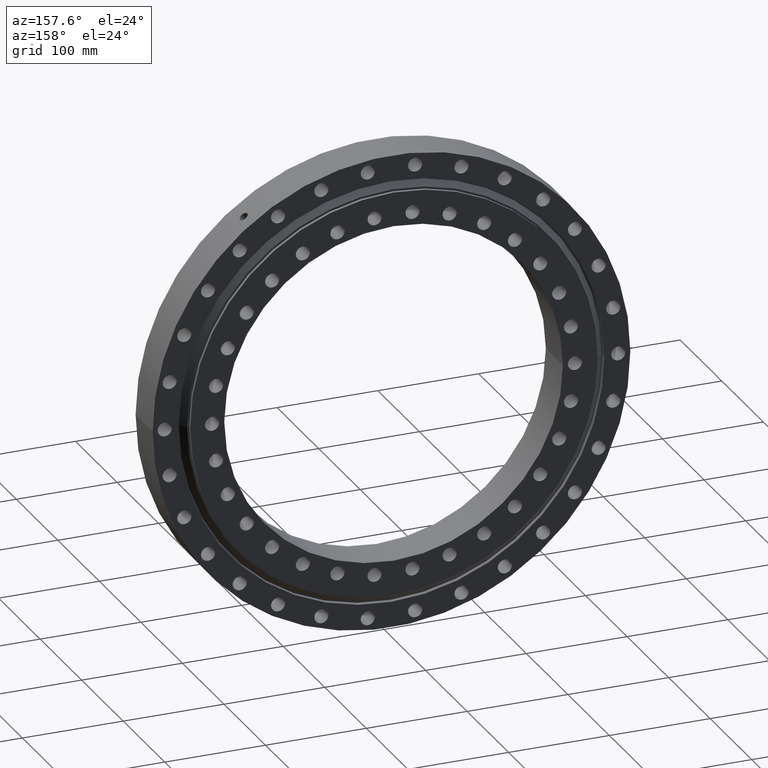
[diagram: clean part render]
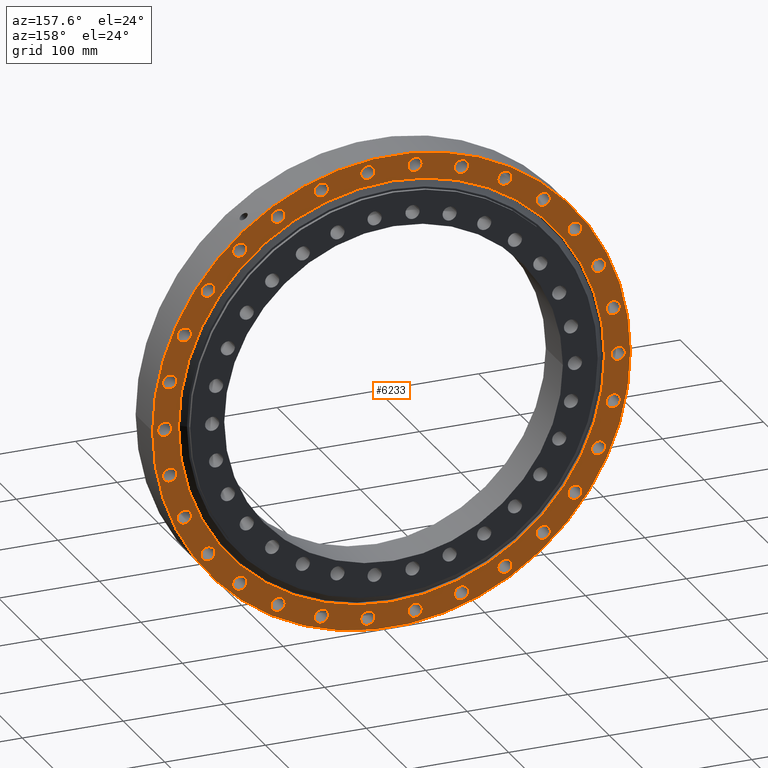
[diagram: same view with one face highlighted and labeled with its STEP entity id]
A machine part, auxiliary view. The second image highlights one B-rep face of the part: STEP entity #6233.
In plain terms, the highlighted planar face has unit normal (0, -1, 0).
Its self-contained STEP definition (entity closure, byte-faithful):
#9 = DIRECTION ( 'NONE',  ( 0.0000000000000000000, 1.000000000000000000, 0.0000000000000000000 ) ) ;
#11 = EDGE_CURVE ( 'NONE', #3335, #3325, #948, .T. ) ;
#34 = AXIS2_PLACEMENT_3D ( 'NONE', #3413, #1153, #1152 ) ;
#41 = ORIENTED_EDGE ( 'NONE', *, *, #6557, .F. ) ;
#51 = ORIENTED_EDGE ( 'NONE', *, *, #2247, .F. ) ;
#63 = AXIS2_PLACEMENT_3D ( 'NONE', #1870, #5289, #5298 ) ;
#64 = ORIENTED_EDGE ( 'NONE', *, *, #4627, .F. ) ;
#100 = CARTESIAN_POINT ( 'NONE',  ( -143.5543864307427100, 18.00000000000000400, 167.2075857324140900 ) ) ;
#106 = EDGE_CURVE ( 'NONE', #5952, #6177, #191, .T. ) ;
#114 = AXIS2_PLACEMENT_3D ( 'NONE', #2688, #2670, #2569 ) ;
#121 = AXIS2_PLACEMENT_3D ( 'NONE', #3672, #3800, #3658 ) ;
#131 = VERTEX_POINT ( 'NONE', #4170 ) ;
#140 = ORIENTED_EDGE ( 'NONE', *, *, #6783, .T. ) ;
#164 = AXIS2_PLACEMENT_3D ( 'NONE', #3949, #3893, #3888 ) ;
#166 = CARTESIAN_POINT ( 'NONE',  ( -212.5477279695850800, 18.00000000000000400, 91.51574469205549200 ) ) ;
#172 = CARTESIAN_POINT ( 'NONE',  ( -69.52882373436573000, 18.00000000000000400, -213.9877161664087500 ) ) ;
#177 = DIRECTION ( 'NONE',  ( 0.0000000000000000000, 1.000000000000000000, 0.0000000000000000000 ) ) ;
#191 = CIRCLE ( 'NONE', #4261, 6.999999999999992900 ) ;
#202 = DIRECTION ( 'NONE',  ( 0.0000000000000000000, 1.000000000000000000, 0.0000000000000000000 ) ) ;
#204 = DIRECTION ( 'NONE',  ( -0.3090169943749445100, 0.0000000000000000000, -0.9510565162951545300 ) ) ;
#252 = VERTEX_POINT ( 'NONE', #6320 ) ;
#268 = DIRECTION ( 'NONE',  ( 0.3090169943749391800, 0.0000000000000000000, 0.9510565162951562000 ) ) ;
#271 = ORIENTED_EDGE ( 'NONE', *, *, #2719, .F. ) ;
#274 = DIRECTION ( 'NONE',  ( 0.0000000000000000000, 1.000000000000000000, 0.0000000000000000000 ) ) ;
#277 = CARTESIAN_POINT ( 'NONE',  ( 69.52882373436422400, 18.00000000000000400, 213.9877161664092000 ) ) ;
#312 = ORIENTED_EDGE ( 'NONE', *, *, #5167, .F. ) ;
#316 = ORIENTED_EDGE ( 'NONE', *, *, #5390, .F. ) ;
#410 = CIRCLE ( 'NONE', #6644, 6.999999999999994700 ) ;
#411 = ORIENTED_EDGE ( 'NONE', *, *, #2647, .F. ) ;
#416 = AXIS2_PLACEMENT_3D ( 'NONE', #4125, #4112, #4107 ) ;
#421 = VERTEX_POINT ( 'NONE', #2401 ) ;
#434 = CARTESIAN_POINT ( 'NONE',  ( 237.0000000000000000, 18.00000000000000400, 2.902412913979226800E-014 ) ) ;
#476 = ORIENTED_EDGE ( 'NONE', *, *, #1558, .F. ) ;
#481 = CARTESIAN_POINT ( 'NONE',  ( 69.52882373436422400, 18.00000000000000400, 213.9877161664092000 ) ) ;
#568 = ORIENTED_EDGE ( 'NONE', *, *, #106, .F. ) ;
#619 = VERTEX_POINT ( 'NONE', #2612 ) ;
#629 = ORIENTED_EDGE ( 'NONE', *, *, #1597, .F. ) ;
#645 = DIRECTION ( 'NONE',  ( -0.9135454576426005300, 0.0000000000000000000, -0.4067366430758008700 ) ) ;
#656 = AXIS2_PLACEMENT_3D ( 'NONE', #4507, #2474, #4510 ) ;
#667 = DIRECTION ( 'NONE',  ( 0.0000000000000000000, 1.000000000000000000, 0.0000000000000000000 ) ) ;
#672 = CARTESIAN_POINT ( 'NONE',  ( 205.5477279695844300, 18.00000000000000400, -91.51574469205682800 ) ) ;
#698 = ORIENTED_EDGE ( 'NONE', *, *, #1306, .F. ) ;
#703 = DIRECTION ( 'NONE',  ( 0.1045284632676568600, 0.0000000000000000000, -0.9945218953682729600 ) ) ;
#704 = DIRECTION ( 'NONE',  ( 0.3090169943749391800, 0.0000000000000000000, 0.9510565162951562000 ) ) ;
#708 = DIRECTION ( 'NONE',  ( 0.0000000000000000000, 1.000000000000000000, 0.0000000000000000000 ) ) ;
#738 = CIRCLE ( 'NONE', #6472, 6.999999999999995600 ) ;
#740 = AXIS2_PLACEMENT_3D ( 'NONE', #277, #274, #268 ) ;
#744 = CARTESIAN_POINT ( 'NONE',  ( 119.5000000000010100, 18.00000000000000400, 194.8557158514981000 ) ) ;
#761 = VERTEX_POINT ( 'NONE', #4406 ) ;
#765 = CIRCLE ( 'NONE', #5536, 6.999999999999994700 ) ;
#781 = CARTESIAN_POINT ( 'NONE',  ( 225.0000000000000000, 18.00000000000000400, -1.703991320164801800E-012 ) ) ;
#787 = DIRECTION ( 'NONE',  ( 1.000000000000000000, 0.0000000000000000000, 6.982962677686261200E-015 ) ) ;
#807 = EDGE_LOOP ( 'NONE', ( #4477, #316 ) ) ;
#815 = EDGE_CURVE ( 'NONE', #5337, #5201, #5659, .T. ) ;
#834 = EDGE_LOOP ( 'NONE', ( #2252, #4891 ) ) ;
#840 = EDGE_LOOP ( 'NONE', ( #2125, #1056 ) ) ;
#841 = DIRECTION ( 'NONE',  ( 0.8090169943749427900, 0.0000000000000000000, 0.5877852522924795800 ) ) ;
#866 = AXIS2_PLACEMENT_3D ( 'NONE', #4968, #4669, #4681 ) ;
#867 = CARTESIAN_POINT ( 'NONE',  ( 182.0288237343639800, 18.00000000000000400, 132.2516817658053300 ) ) ;
#869 = AXIS2_PLACEMENT_3D ( 'NONE', #4726, #4706, #4701 ) ;
#870 = CARTESIAN_POINT ( 'NONE',  ( -69.52882373436230500, 18.00000000000000400, 213.9877161664098300 ) ) ;
#877 = ORIENTED_EDGE ( 'NONE', *, *, #7169, .F. ) ;
#884 = DIRECTION ( 'NONE',  ( 0.0000000000000000000, 1.000000000000000000, 0.0000000000000000000 ) ) ;
#885 = EDGE_CURVE ( 'NONE', #6455, #6576, #6795, .T. ) ;
#897 = EDGE_LOOP ( 'NONE', ( #3156, #3907 ) ) ;
#904 = VERTEX_POINT ( 'NONE', #4709 ) ;
#909 = AXIS2_PLACEMENT_3D ( 'NONE', #6396, #6405, #6408 ) ;
#911 = EDGE_LOOP ( 'NONE', ( #4911, #51 ) ) ;
#914 = AXIS2_PLACEMENT_3D ( 'NONE', #6247, #6460, #5465 ) ;
#915 = CIRCLE ( 'NONE', #5929, 7.000000000000000900 ) ;
#924 = EDGE_CURVE ( 'NONE', #2105, #5029, #6071, .T. ) ;
#935 = CARTESIAN_POINT ( 'NONE',  ( -112.5000000000023900, 18.00000000000000400, -194.8557158514973400 ) ) ;
#936 = CARTESIAN_POINT ( 'NONE',  ( 182.0288237343619400, 18.00000000000000400, -132.2516817658081400 ) ) ;
#948 = CIRCLE ( 'NONE', #2559, 6.999999999999988500 ) ;
#951 = VERTEX_POINT ( 'NONE', #4905 ) ;
#965 = ORIENTED_EDGE ( 'NONE', *, *, #885, .F. ) ;
#988 = CIRCLE ( 'NONE', #4531, 211.3038475772933700 ) ;
#1015 = EDGE_CURVE ( 'NONE', #4384, #4381, #3229, .T. ) ;
#1021 = CARTESIAN_POINT ( 'NONE',  ( -218.0000000000000000, 18.00000000000000400, 3.276015175403614900E-012 ) ) ;
#1037 = VERTEX_POINT ( 'NONE', #6610 ) ;
#1045 = CIRCLE ( 'NONE', #1756, 7.000000000000006200 ) ;
#1053 = VERTEX_POINT ( 'NONE', #6625 ) ;
#1056 = ORIENTED_EDGE ( 'NONE', *, *, #1866, .F. ) ;
#1061 = DIRECTION ( 'NONE',  ( -0.4999999999999987800, 0.0000000000000000000, -0.8660254037844394800 ) ) ;
#1094 = ORIENTED_EDGE ( 'NONE', *, *, #3906, .F. ) ;
#1112 = DIRECTION ( 'NONE',  ( -0.0000000000000000000, 1.000000000000000000, -0.0000000000000000000 ) ) ;
#1114 = DIRECTION ( 'NONE',  ( 1.000000000000000000, 0.0000000000000000000, 0.0000000000000000000 ) ) ;
#1128 = ORIENTED_EDGE ( 'NONE', *, *, #4631, .F. ) ;
#1141 = CARTESIAN_POINT ( 'NONE',  ( -112.5000000000023900, 18.00000000000000400, -194.8557158514973400 ) ) ;
#1143 = DIRECTION ( 'NONE',  ( 0.0000000000000000000, 1.000000000000000000, 0.0000000000000000000 ) ) ;
#1152 = DIRECTION ( 'NONE',  ( 1.000000000000000000, 0.0000000000000000000, 0.0000000000000000000 ) ) ;
#1153 = DIRECTION ( 'NONE',  ( -0.0000000000000000000, 1.000000000000000000, -0.0000000000000000000 ) ) ;
#1172 = VERTEX_POINT ( 'NONE', #7056 ) ;
#1193 = DIRECTION ( 'NONE',  ( 0.9135454576426033100, 0.0000000000000000000, -0.4067366430757943800 ) ) ;
#1205 = DIRECTION ( 'NONE',  ( 0.0000000000000000000, 1.000000000000000000, 0.0000000000000000000 ) ) ;
#1206 = DIRECTION ( 'NONE',  ( 0.0000000000000000000, 1.000000000000000000, 0.0000000000000000000 ) ) ;
#1213 = CIRCLE ( 'NONE', #5323, 6.999999999999990200 ) ;
#1215 = DIRECTION ( 'NONE',  ( 0.9135454576426033100, 0.0000000000000000000, -0.4067366430757943800 ) ) ;
#1220 = CIRCLE ( 'NONE', #5494, 7.000000000000006200 ) ;
#1239 = EDGE_LOOP ( 'NONE', ( #2369, #6859 ) ) ;
#1243 = EDGE_LOOP ( 'NONE', ( #4715, #6027 ) ) ;
#1259 = DIRECTION ( 'NONE',  ( 0.0000000000000000000, 1.000000000000000000, 0.0000000000000000000 ) ) ;
#1267 = CARTESIAN_POINT ( 'NONE',  ( -175.0288237343628500, 18.00000000000000400, 132.2516817658068600 ) ) ;
#1269 = CARTESIAN_POINT ( 'NONE',  ( 205.5477279695844300, 18.00000000000000400, -91.51574469205682800 ) ) ;
#1271 = CARTESIAN_POINT ( 'NONE',  ( -225.0000000000000000, 18.00000000000000400, 3.275157922644211800E-012 ) ) ;
#1290 = CARTESIAN_POINT ( 'NONE',  ( 105.5000000000010200, 18.00000000000000400, 194.8557158514981000 ) ) ;
#1306 = EDGE_CURVE ( 'NONE', #619, #6326, #6480, .T. ) ;
#1313 = DIRECTION ( 'NONE',  ( -0.3090169943749564400, 0.0000000000000000000, 0.9510565162951506400 ) ) ;
#1317 = EDGE_LOOP ( 'NONE', ( #3564, #4007 ) ) ;
#1360 = ORIENTED_EDGE ( 'NONE', *, *, #6666, .F. ) ;
#1366 = AXIS2_PLACEMENT_3D ( 'NONE', #4444, #4371, #4377 ) ;
#1367 = DIRECTION ( 'NONE',  ( -1.000000000000000000, 0.0000000000000000000, 0.0000000000000000000 ) ) ;
#1372 = DIRECTION ( 'NONE',  ( -0.4999999999999987800, 0.0000000000000000000, -0.8660254037844394800 ) ) ;
#1375 = ORIENTED_EDGE ( 'NONE', *, *, #815, .F. ) ;
#1388 = CARTESIAN_POINT ( 'NONE',  ( -205.5477279695850500, 18.00000000000000400, 91.51574469205549200 ) ) ;
#1398 = ORIENTED_EDGE ( 'NONE', *, *, #3891, .F. ) ;
#1409 = CIRCLE ( 'NONE', #6423, 6.999999999999993800 ) ;
#1414 = DIRECTION ( 'NONE',  ( 0.8090169943749511100, 0.0000000000000000000, -0.5877852522924680300 ) ) ;
#1416 = EDGE_LOOP ( 'NONE', ( #5538, #5227 ) ) ;
#1419 = DIRECTION ( 'NONE',  ( 0.0000000000000000000, 1.000000000000000000, 0.0000000000000000000 ) ) ;
#1425 = DIRECTION ( 'NONE',  ( 0.0000000000000000000, 1.000000000000000000, 0.0000000000000000000 ) ) ;
#1427 = DIRECTION ( 'NONE',  ( -0.8090169943749477800, 0.0000000000000000000, -0.5877852522924725800 ) ) ;
#1432 = VERTEX_POINT ( 'NONE', #2883 ) ;
#1433 = CARTESIAN_POINT ( 'NONE',  ( -182.0288237343649200, 18.00000000000000400, -132.2516817658040500 ) ) ;
#1441 = ORIENTED_EDGE ( 'NONE', *, *, #5674, .F. ) ;
#1450 = CARTESIAN_POINT ( 'NONE',  ( 16.51890423522308600, 18.00000000000000400, 223.7674264578614000 ) ) ;
#1476 = CARTESIAN_POINT ( 'NONE',  ( 16.51890423521959400, 18.00000000000000400, -223.7674264578617500 ) ) ;
#1498 = CIRCLE ( 'NONE', #6604, 7.000000000000005300 ) ;
#1506 = ORIENTED_EDGE ( 'NONE', *, *, #5921, .F. ) ;
#1524 = AXIS2_PLACEMENT_3D ( 'NONE', #4940, #4938, #4924 ) ;
#1543 = EDGE_CURVE ( 'NONE', #5484, #6311, #5675, .T. ) ;
#1558 = EDGE_CURVE ( 'NONE', #5201, #5337, #4659, .T. ) ;
#1574 = AXIS2_PLACEMENT_3D ( 'NONE', #5066, #5041, #5056 ) ;
#1597 = EDGE_CURVE ( 'NONE', #4475, #4210, #4443, .T. ) ;
#1620 = ORIENTED_EDGE ( 'NONE', *, *, #2672, .F. ) ;
#1661 = CIRCLE ( 'NONE', #6762, 7.000000000000004400 ) ;
#1664 = EDGE_LOOP ( 'NONE', ( #1975, #64 ) ) ;
#1675 = CARTESIAN_POINT ( 'NONE',  ( -30.51890423522104400, 18.00000000000000400, 223.7674264578616000 ) ) ;
#1701 = EDGE_CURVE ( 'NONE', #2796, #252, #3563, .T. ) ;
#1713 = AXIS2_PLACEMENT_3D ( 'NONE', #935, #2891, #1372 ) ;
#1732 = ORIENTED_EDGE ( 'NONE', *, *, #6381, .F. ) ;
#1754 = DIRECTION ( 'NONE',  ( 0.0000000000000000000, 1.000000000000000000, 0.0000000000000000000 ) ) ;
#1756 = AXIS2_PLACEMENT_3D ( 'NONE', #1271, #1259, #1367 ) ;
#1757 = AXIS2_PLACEMENT_3D ( 'NONE', #870, #2710, #6302 ) ;
#1759 = ORIENTED_EDGE ( 'NONE', *, *, #11, .F. ) ;
#1770 = AXIS2_PLACEMENT_3D ( 'NONE', #3127, #202, #645 ) ;
#1801 = AXIS2_PLACEMENT_3D ( 'NONE', #2493, #6741, #6745 ) ;
#1863 = VERTEX_POINT ( 'NONE', #4603 ) ;
#1866 = EDGE_CURVE ( 'NONE', #2205, #3234, #2879, .T. ) ;
#1870 = CARTESIAN_POINT ( 'NONE',  ( -69.52882373436573000, 18.00000000000000400, -213.9877161664087500 ) ) ;
#1871 = CIRCLE ( 'NONE', #7128, 6.999999999999995600 ) ;
#1872 = EDGE_LOOP ( 'NONE', ( #271, #5329 ) ) ;
#1891 = CARTESIAN_POINT ( 'NONE',  ( 232.0000000000000000, 18.00000000000000400, -1.703134067405398700E-012 ) ) ;
#1894 = ORIENTED_EDGE ( 'NONE', *, *, #5558, .F. ) ;
#1918 = DIRECTION ( 'NONE',  ( 0.5000000000000048800, 0.0000000000000000000, -0.8660254037844357100 ) ) ;
#1924 = AXIS2_PLACEMENT_3D ( 'NONE', #481, #1754, #704 ) ;
#1930 = CIRCLE ( 'NONE', #7190, 6.999999999999997300 ) ;
#1944 = DIRECTION ( 'NONE',  ( -0.1045284632676504900, 0.0000000000000000000, -0.9945218953682736200 ) ) ;
#1953 = CIRCLE ( 'NONE', #6036, 7.000000000000001800 ) ;
#1966 = VERTEX_POINT ( 'NONE', #1450 ) ;
#1975 = ORIENTED_EDGE ( 'NONE', *, *, #1015, .F. ) ;
#1989 = CIRCLE ( 'NONE', #34, 211.3038475772933700 ) ;
#1995 = CIRCLE ( 'NONE', #7302, 6.999999999999994700 ) ;
#2001 = EDGE_LOOP ( 'NONE', ( #312, #2863 ) ) ;
#2003 = CIRCLE ( 'NONE', #63, 7.000000000000004400 ) ;
#2030 = AXIS2_PLACEMENT_3D ( 'NONE', #5813, #5791, #5799 ) ;
#2053 = VERTEX_POINT ( 'NONE', #2395 ) ;
#2055 = VERTEX_POINT ( 'NONE', #2241 ) ;
#2065 = CIRCLE ( 'NONE', #114, 6.999999999999993800 ) ;
#2095 = ORIENTED_EDGE ( 'NONE', *, *, #6857, .F. ) ;
#2096 = EDGE_CURVE ( 'NONE', #421, #4289, #1953, .T. ) ;
#2105 = VERTEX_POINT ( 'NONE', #2300 ) ;
#2125 = ORIENTED_EDGE ( 'NONE', *, *, #5940, .F. ) ;
#2142 = EDGE_LOOP ( 'NONE', ( #6449, #1128 ) ) ;
#2180 = CARTESIAN_POINT ( 'NONE',  ( 30.51890423521958000, 18.00000000000000400, -223.7674264578617500 ) ) ;
#2188 = AXIS2_PLACEMENT_3D ( 'NONE', #7137, #7144, #7114 ) ;
#2194 = DIRECTION ( 'NONE',  ( 0.0000000000000000000, 1.000000000000000000, 0.0000000000000000000 ) ) ;
#2199 = DIRECTION ( 'NONE',  ( -0.5000000000000112100, 0.0000000000000000000, 0.8660254037844322700 ) ) ;
#2205 = VERTEX_POINT ( 'NONE', #1021 ) ;
#2209 = DIRECTION ( 'NONE',  ( 0.0000000000000000000, 1.000000000000000000, 0.0000000000000000000 ) ) ;
#2214 = CARTESIAN_POINT ( 'NONE',  ( -112.4999999999994500, 18.00000000000000400, 194.8557158514990100 ) ) ;
#2224 = EDGE_LOOP ( 'NONE', ( #2521, #4368 ) ) ;
#2228 = DIRECTION ( 'NONE',  ( 0.4999999999999911200, 0.0000000000000000000, 0.8660254037844438100 ) ) ;
#2241 = CARTESIAN_POINT ( 'NONE',  ( 211.3038475772934000, 18.00000000000000400, 2.587725805830525300E-014 ) ) ;
#2245 = CARTESIAN_POINT ( 'NONE',  ( 112.5000000000010100, 18.00000000000000400, 194.8557158514981000 ) ) ;
#2247 = EDGE_CURVE ( 'NONE', #4835, #6766, #1220, .T. ) ;
#2249 = CARTESIAN_POINT ( 'NONE',  ( 150.5543864307441300, 18.00000000000000400, 167.2075857324128100 ) ) ;
#2252 = ORIENTED_EDGE ( 'NONE', *, *, #3295, .F. ) ;
#2256 = DIRECTION ( 'NONE',  ( -0.9781476007338083500, 0.0000000000000000000, 0.2079116908177463000 ) ) ;
#2262 = DIRECTION ( 'NONE',  ( 0.0000000000000000000, 1.000000000000000000, 0.0000000000000000000 ) ) ;
#2265 = CIRCLE ( 'NONE', #2827, 6.999999999999980500 ) ;
#2266 = VERTEX_POINT ( 'NONE', #744 ) ;
#2276 = EDGE_CURVE ( 'NONE', #6326, #619, #1213, .T. ) ;
#2300 = CARTESIAN_POINT ( 'NONE',  ( 119.4999999999981000, 18.00000000000000400, -194.8557158514998700 ) ) ;
#2310 = DIRECTION ( 'NONE',  ( 0.0000000000000000000, 1.000000000000000000, 0.0000000000000000000 ) ) ;
#2324 = CARTESIAN_POINT ( 'NONE',  ( -220.0832101651061500, 18.00000000000000400, 46.78013043399624100 ) ) ;
#2369 = ORIENTED_EDGE ( 'NONE', *, *, #5346, .F. ) ;
#2395 = CARTESIAN_POINT ( 'NONE',  ( -16.51890423522460300, 18.00000000000000400, -223.7674264578612900 ) ) ;
#2401 = CARTESIAN_POINT ( 'NONE',  ( -213.0832101651061500, 18.00000000000000400, 46.78013043399624100 ) ) ;
#2405 = DIRECTION ( 'NONE',  ( 0.0000000000000000000, 1.000000000000000000, 0.0000000000000000000 ) ) ;
#2408 = CARTESIAN_POINT ( 'NONE',  ( -189.0288237343628700, 18.00000000000000400, 132.2516817658068600 ) ) ;
#2424 = AXIS2_PLACEMENT_3D ( 'NONE', #6457, #708, #6442 ) ;
#2426 = DIRECTION ( 'NONE',  ( -0.6691306063588581300, 0.0000000000000000000, -0.7431448254773941300 ) ) ;
#2429 = VERTEX_POINT ( 'NONE', #434 ) ;
#2445 = DIRECTION ( 'NONE',  ( 0.6691306063588624600, 0.0000000000000000000, -0.7431448254773905800 ) ) ;
#2455 = FACE_OUTER_BOUND ( 'NONE', #4860, .T. ) ;
#2457 = DIRECTION ( 'NONE',  ( 0.0000000000000000000, 1.000000000000000000, 0.0000000000000000000 ) ) ;
#2470 = FACE_BOUND ( 'NONE', #840, .T. ) ;
#2474 = DIRECTION ( 'NONE',  ( 0.0000000000000000000, 1.000000000000000000, 0.0000000000000000000 ) ) ;
#2485 = AXIS2_PLACEMENT_3D ( 'NONE', #6561, #6574, #6554 ) ;
#2488 = FACE_BOUND ( 'NONE', #1664, .T. ) ;
#2493 = CARTESIAN_POINT ( 'NONE',  ( 0.0000000000000000000, 18.00000000000000400, 0.0000000000000000000 ) ) ;
#2511 = AXIS2_PLACEMENT_3D ( 'NONE', #4087, #6831, #6841 ) ;
#2521 = ORIENTED_EDGE ( 'NONE', *, *, #5698, .F. ) ;
#2528 = ORIENTED_EDGE ( 'NONE', *, *, #6577, .F. ) ;
#2548 = FACE_BOUND ( 'NONE', #3459, .T. ) ;
#2558 = FACE_BOUND ( 'NONE', #5254, .T. ) ;
#2559 = AXIS2_PLACEMENT_3D ( 'NONE', #2214, #2209, #2199 ) ;
#2569 = DIRECTION ( 'NONE',  ( -0.9781476007338055800, 0.0000000000000000000, -0.2079116908177594300 ) ) ;
#2574 = AXIS2_PLACEMENT_3D ( 'NONE', #6963, #6983, #6954 ) ;
#2580 = CARTESIAN_POINT ( 'NONE',  ( 150.5543864307414900, 18.00000000000000400, -167.2075857324151400 ) ) ;
#2595 = VERTEX_POINT ( 'NONE', #2614 ) ;
#2612 = CARTESIAN_POINT ( 'NONE',  ( 198.5477279695844300, 18.00000000000000400, -91.51574469205682800 ) ) ;
#2614 = CARTESIAN_POINT ( 'NONE',  ( -211.3038475772934000, 18.00000000000000400, 0.0000000000000000000 ) ) ;
#2617 = FACE_BOUND ( 'NONE', #5147, .T. ) ;
#2627 = FACE_BOUND ( 'NONE', #2750, .T. ) ;
#2635 = CARTESIAN_POINT ( 'NONE',  ( -157.5543864307426800, 18.00000000000000400, 167.2075857324140900 ) ) ;
#2637 = FACE_BOUND ( 'NONE', #4441, .T. ) ;
#2642 = VERTEX_POINT ( 'NONE', #3394 ) ;
#2647 = EDGE_CURVE ( 'NONE', #3741, #4523, #7136, .T. ) ;
#2655 = CARTESIAN_POINT ( 'NONE',  ( 112.4999999999981000, 18.00000000000000400, -194.8557158514998700 ) ) ;
#2670 = DIRECTION ( 'NONE',  ( 0.0000000000000000000, 1.000000000000000000, 0.0000000000000000000 ) ) ;
#2672 = EDGE_CURVE ( 'NONE', #2702, #4439, #7131, .T. ) ;
#2683 = CARTESIAN_POINT ( 'NONE',  ( -69.52882373436230500, 18.00000000000000400, 213.9877161664098300 ) ) ;
#2686 = DIRECTION ( 'NONE',  ( 0.0000000000000000000, 1.000000000000000000, 0.0000000000000000000 ) ) ;
#2688 = CARTESIAN_POINT ( 'NONE',  ( -220.0832101651069500, 18.00000000000000400, -46.78013043399274600 ) ) ;
#2702 = VERTEX_POINT ( 'NONE', #3936 ) ;
#2707 = VERTEX_POINT ( 'NONE', #3917 ) ;
#2709 = FACE_BOUND ( 'NONE', #4580, .T. ) ;
#2710 = DIRECTION ( 'NONE',  ( 0.0000000000000000000, 1.000000000000000000, 0.0000000000000000000 ) ) ;
#2719 = EDGE_CURVE ( 'NONE', #904, #1172, #7041, .T. ) ;
#2721 = DIRECTION ( 'NONE',  ( 0.4999999999999911200, 0.0000000000000000000, 0.8660254037844438100 ) ) ;
#2724 = EDGE_CURVE ( 'NONE', #1863, #2841, #6938, .T. ) ;
#2750 = EDGE_LOOP ( 'NONE', ( #568, #877 ) ) ;
#2765 = DIRECTION ( 'NONE',  ( 0.6691306063588624600, 0.0000000000000000000, -0.7431448254773905800 ) ) ;
#2766 = CIRCLE ( 'NONE', #914, 6.999999999999992000 ) ;
#2776 = DIRECTION ( 'NONE',  ( 0.0000000000000000000, 1.000000000000000000, 0.0000000000000000000 ) ) ;
#2782 = CARTESIAN_POINT ( 'NONE',  ( 150.5543864307414900, 18.00000000000000400, -167.2075857324151400 ) ) ;
#2786 = DIRECTION ( 'NONE',  ( -0.6691306063588665600, 0.0000000000000000000, 0.7431448254773868100 ) ) ;
#2787 = ORIENTED_EDGE ( 'NONE', *, *, #2096, .F. ) ;
#2788 = FACE_BOUND ( 'NONE', #5679, .T. ) ;
#2796 = VERTEX_POINT ( 'NONE', #3630 ) ;
#2818 = FACE_BOUND ( 'NONE', #4768, .T. ) ;
#2824 = CARTESIAN_POINT ( 'NONE',  ( 112.5000000000010100, 18.00000000000000400, 194.8557158514981000 ) ) ;
#2827 = AXIS2_PLACEMENT_3D ( 'NONE', #2249, #6210, #4300 ) ;
#2841 = VERTEX_POINT ( 'NONE', #3576 ) ;
#2844 = VERTEX_POINT ( 'NONE', #3666 ) ;
#2863 = ORIENTED_EDGE ( 'NONE', *, *, #3390, .F. ) ;
#2879 = CIRCLE ( 'NONE', #6931, 7.000000000000006200 ) ;
#2881 = FACE_BOUND ( 'NONE', #5500, .T. ) ;
#2883 = CARTESIAN_POINT ( 'NONE',  ( 189.0288237343619100, 18.00000000000000400, -132.2516817658081400 ) ) ;
#2886 = FACE_BOUND ( 'NONE', #6011, .T. ) ;
#2887 = ORIENTED_EDGE ( 'NONE', *, *, #3726, .F. ) ;
#2891 = DIRECTION ( 'NONE',  ( 0.0000000000000000000, 1.000000000000000000, 0.0000000000000000000 ) ) ;
#2895 = CARTESIAN_POINT ( 'NONE',  ( -150.5543864307452700, 18.00000000000000400, -167.2075857324117900 ) ) ;
#2897 = EDGE_CURVE ( 'NONE', #6766, #4835, #6602, .T. ) ;
#2904 = DIRECTION ( 'NONE',  ( 0.0000000000000000000, 1.000000000000000000, 0.0000000000000000000 ) ) ;
#2907 = FACE_BOUND ( 'NONE', #2224, .T. ) ;
#2909 = EDGE_CURVE ( 'NONE', #3049, #2707, #6618, .T. ) ;
#2941 = DIRECTION ( 'NONE',  ( 0.1045284632676436200, 0.0000000000000000000, 0.9945218953682744000 ) ) ;
#2945 = DIRECTION ( 'NONE',  ( 0.0000000000000000000, 1.000000000000000000, 0.0000000000000000000 ) ) ;
#2954 = CARTESIAN_POINT ( 'NONE',  ( 23.51890423522307600, 18.00000000000000400, 223.7674264578614000 ) ) ;
#2958 = DIRECTION ( 'NONE',  ( 0.0000000000000000000, 1.000000000000000000, 0.0000000000000000000 ) ) ;
#2963 = DIRECTION ( 'NONE',  ( 0.0000000000000000000, 1.000000000000000000, 0.0000000000000000000 ) ) ;
#2966 = CARTESIAN_POINT ( 'NONE',  ( -23.51890423522105100, 18.00000000000000400, 223.7674264578616000 ) ) ;
#2970 = CARTESIAN_POINT ( 'NONE',  ( -23.51890423522459600, 18.00000000000000400, -223.7674264578612900 ) ) ;
#2981 = ORIENTED_EDGE ( 'NONE', *, *, #3629, .T. ) ;
#2990 = FACE_BOUND ( 'NONE', #3028, .T. ) ;
#3016 = CARTESIAN_POINT ( 'NONE',  ( 225.0000000000000000, 18.00000000000000400, -1.703991320164801800E-012 ) ) ;
#3028 = EDGE_LOOP ( 'NONE', ( #4316, #1360 ) ) ;
#3030 = DIRECTION ( 'NONE',  ( 1.000000000000000000, 0.0000000000000000000, 6.982962677686261200E-015 ) ) ;
#3041 = CARTESIAN_POINT ( 'NONE',  ( -76.52882373436230500, 18.00000000000000400, 213.9877161664098300 ) ) ;
#3046 = DIRECTION ( 'NONE',  ( 0.0000000000000000000, 1.000000000000000000, 0.0000000000000000000 ) ) ;
#3049 = VERTEX_POINT ( 'NONE', #1675 ) ;
#3051 = EDGE_CURVE ( 'NONE', #4288, #131, #6298, .T. ) ;
#3066 = ORIENTED_EDGE ( 'NONE', *, *, #3311, .F. ) ;
#3074 = FACE_BOUND ( 'NONE', #834, .T. ) ;
#3075 = FACE_BOUND ( 'NONE', #897, .T. ) ;
#3077 = AXIS2_PLACEMENT_3D ( 'NONE', #2683, #2194, #1313 ) ;
#3078 = CARTESIAN_POINT ( 'NONE',  ( -150.5543864307426800, 18.00000000000000400, 167.2075857324140900 ) ) ;
#3084 = FACE_BOUND ( 'NONE', #911, .T. ) ;
#3093 = DIRECTION ( 'NONE',  ( -0.6691306063588581300, 0.0000000000000000000, -0.7431448254773941300 ) ) ;
#3117 = DIRECTION ( 'NONE',  ( 0.0000000000000000000, 1.000000000000000000, 0.0000000000000000000 ) ) ;
#3127 = CARTESIAN_POINT ( 'NONE',  ( -205.5477279695864500, 18.00000000000000400, -91.51574469205225200 ) ) ;
#3129 = DIRECTION ( 'NONE',  ( -0.9135454576426005300, 0.0000000000000000000, -0.4067366430758008700 ) ) ;
#3139 = AXIS2_PLACEMENT_3D ( 'NONE', #5503, #5499, #5487 ) ;
#3156 = ORIENTED_EDGE ( 'NONE', *, *, #3051, .F. ) ;
#3177 = FACE_BOUND ( 'NONE', #5592, .T. ) ;
#3191 = FACE_BOUND ( 'NONE', #5177, .T. ) ;
#3194 = DIRECTION ( 'NONE',  ( 0.0000000000000000000, 1.000000000000000000, 0.0000000000000000000 ) ) ;
#3200 = AXIS2_PLACEMENT_3D ( 'NONE', #1388, #3046, #4785 ) ;
#3204 = CARTESIAN_POINT ( 'NONE',  ( -150.5543864307452700, 18.00000000000000400, -167.2075857324117900 ) ) ;
#3222 = CIRCLE ( 'NONE', #1366, 7.000000000000000000 ) ;
#3229 = CIRCLE ( 'NONE', #909, 6.999999999999993800 ) ;
#3234 = VERTEX_POINT ( 'NONE', #5394 ) ;
#3239 = CARTESIAN_POINT ( 'NONE',  ( -205.5477279695850500, 18.00000000000000400, 91.51574469205549200 ) ) ;
#3244 = DIRECTION ( 'NONE',  ( 0.0000000000000000000, 1.000000000000000000, 0.0000000000000000000 ) ) ;
#3263 = VERTEX_POINT ( 'NONE', #7134 ) ;
#3277 = DIRECTION ( 'NONE',  ( -0.9135454576426064200, 0.0000000000000000000, 0.4067366430757879400 ) ) ;
#3295 = EDGE_CURVE ( 'NONE', #6558, #1053, #5794, .T. ) ;
#3310 = CARTESIAN_POINT ( 'NONE',  ( 212.5477279695844300, 18.00000000000000400, -91.51574469205682800 ) ) ;
#3311 = EDGE_CURVE ( 'NONE', #3325, #3335, #5764, .T. ) ;
#3325 = VERTEX_POINT ( 'NONE', #6823 ) ;
#3335 = VERTEX_POINT ( 'NONE', #6810 ) ;
#3337 = FACE_BOUND ( 'NONE', #1239, .T. ) ;
#3361 = CARTESIAN_POINT ( 'NONE',  ( -105.5000000000024000, 18.00000000000000400, -194.8557158514973400 ) ) ;
#3365 = AXIS2_PLACEMENT_3D ( 'NONE', #2966, #2958, #3389 ) ;
#3370 = FACE_BOUND ( 'NONE', #1243, .T. ) ;
#3383 = DIRECTION ( 'NONE',  ( 0.0000000000000000000, 1.000000000000000000, 0.0000000000000000000 ) ) ;
#3389 = DIRECTION ( 'NONE',  ( -0.1045284632676636300, 0.0000000000000000000, 0.9945218953682721800 ) ) ;
#3390 = EDGE_CURVE ( 'NONE', #2053, #951, #5388, .T. ) ;
#3394 = CARTESIAN_POINT ( 'NONE',  ( 175.0288237343619600, 18.00000000000000400, -132.2516817658081400 ) ) ;
#3398 = CARTESIAN_POINT ( 'NONE',  ( -205.5477279695864500, 18.00000000000000400, -91.51574469205225200 ) ) ;
#3413 = CARTESIAN_POINT ( 'NONE',  ( 0.0000000000000000000, 18.00000000000000400, 0.0000000000000000000 ) ) ;
#3419 = FACE_BOUND ( 'NONE', #1317, .T. ) ;
#3429 = EDGE_CURVE ( 'NONE', #3263, #6788, #5198, .T. ) ;
#3435 = DIRECTION ( 'NONE',  ( -0.8090169943749477800, 0.0000000000000000000, -0.5877852522924725800 ) ) ;
#3442 = CARTESIAN_POINT ( 'NONE',  ( 76.52882373436094100, 18.00000000000000400, -213.9877161664102800 ) ) ;
#3443 = FACE_BOUND ( 'NONE', #5802, .T. ) ;
#3448 = FACE_BOUND ( 'NONE', #7014, .T. ) ;
#3450 = DIRECTION ( 'NONE',  ( 0.0000000000000000000, 1.000000000000000000, 0.0000000000000000000 ) ) ;
#3459 = EDGE_LOOP ( 'NONE', ( #1398, #2787 ) ) ;
#3464 = AXIS2_PLACEMENT_3D ( 'NONE', #867, #884, #841 ) ;
#3482 = ORIENTED_EDGE ( 'NONE', *, *, #6119, .F. ) ;
#3485 = CARTESIAN_POINT ( 'NONE',  ( 76.52882373436422400, 18.00000000000000400, 213.9877161664092000 ) ) ;
#3502 = ORIENTED_EDGE ( 'NONE', *, *, #4657, .F. ) ;
#3543 = AXIS2_PLACEMENT_3D ( 'NONE', #3016, #3383, #3030 ) ;
#3563 = CIRCLE ( 'NONE', #7287, 6.999999999999980500 ) ;
#3564 = ORIENTED_EDGE ( 'NONE', *, *, #5053, .F. ) ;
#3573 = FACE_BOUND ( 'NONE', #2001, .T. ) ;
#3576 = CARTESIAN_POINT ( 'NONE',  ( -189.0288237343649200, 18.00000000000000400, -132.2516817658040500 ) ) ;
#3579 = FACE_BOUND ( 'NONE', #2142, .T. ) ;
#3583 = FACE_BOUND ( 'NONE', #1416, .T. ) ;
#3604 = FACE_BOUND ( 'NONE', #1872, .T. ) ;
#3629 = EDGE_CURVE ( 'NONE', #2429, #2844, #4863, .T. ) ;
#3630 = CARTESIAN_POINT ( 'NONE',  ( 157.5543864307441300, 18.00000000000000400, 167.2075857324128100 ) ) ;
#3633 = AXIS2_PLACEMENT_3D ( 'NONE', #4830, #4831, #4855 ) ;
#3644 = CARTESIAN_POINT ( 'NONE',  ( 0.0000000000000000000, 18.00000000000000400, 0.0000000000000000000 ) ) ;
#3658 = DIRECTION ( 'NONE',  ( 0.9781476007338043600, 0.0000000000000000000, 0.2079116908177661100 ) ) ;
#3666 = CARTESIAN_POINT ( 'NONE',  ( -237.0000000000000000, 18.00000000000000400, 0.0000000000000000000 ) ) ;
#3672 = CARTESIAN_POINT ( 'NONE',  ( 220.0832101651066400, 18.00000000000000400, 46.78013043399424500 ) ) ;
#3679 = FACE_BOUND ( 'NONE', #7120, .T. ) ;
#3718 = EDGE_CURVE ( 'NONE', #1172, #904, #4506, .T. ) ;
#3726 = EDGE_CURVE ( 'NONE', #4210, #4475, #4335, .T. ) ;
#3733 = AXIS2_PLACEMENT_3D ( 'NONE', #4927, #4283, #6812 ) ;
#3741 = VERTEX_POINT ( 'NONE', #5742 ) ;
#3751 = EDGE_CURVE ( 'NONE', #5639, #1037, #4272, .T. ) ;
#3786 = FACE_BOUND ( 'NONE', #6402, .T. ) ;
#3796 = CIRCLE ( 'NONE', #6588, 6.999999999999992900 ) ;
#3800 = DIRECTION ( 'NONE',  ( 0.0000000000000000000, 1.000000000000000000, 0.0000000000000000000 ) ) ;
#3820 = CIRCLE ( 'NONE', #1524, 6.999999999999983100 ) ;
#3869 = CARTESIAN_POINT ( 'NONE',  ( 213.0832101651066100, 18.00000000000000400, 46.78013043399424500 ) ) ;
#3888 = DIRECTION ( 'NONE',  ( 1.000000000000000000, 0.0000000000000000000, 0.0000000000000000000 ) ) ;
#3891 = EDGE_CURVE ( 'NONE', #4289, #421, #3956, .T. ) ;
#3893 = DIRECTION ( 'NONE',  ( 0.0000000000000000000, -1.000000000000000000, 0.0000000000000000000 ) ) ;
#3906 = EDGE_CURVE ( 'NONE', #2707, #3049, #3820, .T. ) ;
#3907 = ORIENTED_EDGE ( 'NONE', *, *, #6965, .F. ) ;
#3917 = CARTESIAN_POINT ( 'NONE',  ( -16.51890423522105800, 18.00000000000000400, 223.7674264578616000 ) ) ;
#3936 = CARTESIAN_POINT ( 'NONE',  ( -198.5477279695850500, 18.00000000000000400, 91.51574469205549200 ) ) ;
#3949 = CARTESIAN_POINT ( 'NONE',  ( -237.0000000000000000, 18.00000000000000400, 0.0000000000000000000 ) ) ;
#3953 = CARTESIAN_POINT ( 'NONE',  ( -182.0288237343649200, 18.00000000000000400, -132.2516817658040500 ) ) ;
#3956 = CIRCLE ( 'NONE', #1574, 7.000000000000001800 ) ;
#4007 = ORIENTED_EDGE ( 'NONE', *, *, #924, .F. ) ;
#4043 = CARTESIAN_POINT ( 'NONE',  ( -76.52882373436571600, 18.00000000000000400, -213.9877161664087500 ) ) ;
#4048 = EDGE_CURVE ( 'NONE', #1432, #2642, #3222, .T. ) ;
#4052 = CARTESIAN_POINT ( 'NONE',  ( 150.5543864307441300, 18.00000000000000400, 167.2075857324128100 ) ) ;
#4063 = DIRECTION ( 'NONE',  ( 0.6691306063588519100, 0.0000000000000000000, 0.7431448254773999100 ) ) ;
#4070 = AXIS2_PLACEMENT_3D ( 'NONE', #3953, #3450, #3435 ) ;
#4087 = CARTESIAN_POINT ( 'NONE',  ( -112.4999999999994500, 18.00000000000000400, 194.8557158514990100 ) ) ;
#4107 = DIRECTION ( 'NONE',  ( 0.9135454576425975400, 0.0000000000000000000, 0.4067366430758074200 ) ) ;
#4108 = AXIS2_PLACEMENT_3D ( 'NONE', #3398, #3117, #3129 ) ;
#4112 = DIRECTION ( 'NONE',  ( 0.0000000000000000000, 1.000000000000000000, 0.0000000000000000000 ) ) ;
#4124 = AXIS2_PLACEMENT_3D ( 'NONE', #3239, #3244, #3277 ) ;
#4125 = CARTESIAN_POINT ( 'NONE',  ( 205.5477279695858800, 18.00000000000000400, 91.51574469205360200 ) ) ;
#4139 = DIRECTION ( 'NONE',  ( 0.0000000000000000000, 1.000000000000000000, 0.0000000000000000000 ) ) ;
#4148 = CIRCLE ( 'NONE', #121, 7.000000000000002700 ) ;
#4158 = FACE_BOUND ( 'NONE', #807, .T. ) ;
#4170 = CARTESIAN_POINT ( 'NONE',  ( 227.0832101651066400, 18.00000000000000400, 46.78013043399424500 ) ) ;
#4191 = EDGE_CURVE ( 'NONE', #6311, #5484, #2766, .T. ) ;
#4210 = VERTEX_POINT ( 'NONE', #7005 ) ;
#4224 = AXIS2_PLACEMENT_3D ( 'NONE', #3204, #3194, #3093 ) ;
#4234 = PLANE ( 'NONE',  #164 ) ;
#4261 = AXIS2_PLACEMENT_3D ( 'NONE', #3078, #9, #2786 ) ;
#4272 = CIRCLE ( 'NONE', #1713, 6.999999999999995600 ) ;
#4283 = DIRECTION ( 'NONE',  ( 0.0000000000000000000, 1.000000000000000000, 0.0000000000000000000 ) ) ;
#4288 = VERTEX_POINT ( 'NONE', #3869 ) ;
#4289 = VERTEX_POINT ( 'NONE', #6307 ) ;
#4300 = DIRECTION ( 'NONE',  ( 0.6691306063588519100, 0.0000000000000000000, 0.7431448254773999100 ) ) ;
#4306 = CIRCLE ( 'NONE', #416, 7.000000000000004400 ) ;
#4316 = ORIENTED_EDGE ( 'NONE', *, *, #3429, .F. ) ;
#4329 = DIRECTION ( 'NONE',  ( -1.000000000000000000, 0.0000000000000000000, 0.0000000000000000000 ) ) ;
#4335 = CIRCLE ( 'NONE', #1757, 7.000000000000004400 ) ;
#4341 = CARTESIAN_POINT ( 'NONE',  ( -225.0000000000000000, 18.00000000000000400, 3.275157922644211800E-012 ) ) ;
#4362 = AXIS2_PLACEMENT_3D ( 'NONE', #2245, #2262, #2228 ) ;
#4368 = ORIENTED_EDGE ( 'NONE', *, *, #1701, .F. ) ;
#4371 = DIRECTION ( 'NONE',  ( 0.0000000000000000000, 1.000000000000000000, 0.0000000000000000000 ) ) ;
#4377 = DIRECTION ( 'NONE',  ( 0.8090169943749511100, 0.0000000000000000000, -0.5877852522924680300 ) ) ;
#4381 = VERTEX_POINT ( 'NONE', #6220 ) ;
#4384 = VERTEX_POINT ( 'NONE', #6098 ) ;
#4406 = CARTESIAN_POINT ( 'NONE',  ( -62.52882373436573000, 18.00000000000000400, -213.9877161664087500 ) ) ;
#4417 = CARTESIAN_POINT ( 'NONE',  ( 213.0832101651058700, 18.00000000000000400, -46.78013043399769100 ) ) ;
#4439 = VERTEX_POINT ( 'NONE', #166 ) ;
#4441 = EDGE_LOOP ( 'NONE', ( #1759, #3066 ) ) ;
#4443 = CIRCLE ( 'NONE', #3077, 7.000000000000004400 ) ;
#4444 = CARTESIAN_POINT ( 'NONE',  ( 182.0288237343619400, 18.00000000000000400, -132.2516817658081400 ) ) ;
#4475 = VERTEX_POINT ( 'NONE', #3041 ) ;
#4477 = ORIENTED_EDGE ( 'NONE', *, *, #4651, .F. ) ;
#4504 = VERTEX_POINT ( 'NONE', #4043 ) ;
#4506 = CIRCLE ( 'NONE', #1770, 6.999999999999981300 ) ;
#4507 = CARTESIAN_POINT ( 'NONE',  ( 69.52882373436095500, 18.00000000000000400, -213.9877161664102800 ) ) ;
#4510 = DIRECTION ( 'NONE',  ( 0.3090169943749510600, 0.0000000000000000000, -0.9510565162951523100 ) ) ;
#4523 = VERTEX_POINT ( 'NONE', #5908 ) ;
#4531 = AXIS2_PLACEMENT_3D ( 'NONE', #3644, #1112, #1114 ) ;
#4540 = CARTESIAN_POINT ( 'NONE',  ( 220.0832101651058700, 18.00000000000000400, -46.78013043399769100 ) ) ;
#4543 = DIRECTION ( 'NONE',  ( 0.0000000000000000000, 1.000000000000000000, 0.0000000000000000000 ) ) ;
#4550 = DIRECTION ( 'NONE',  ( 0.9781476007338068000, 0.0000000000000000000, -0.2079116908177537600 ) ) ;
#4560 = CARTESIAN_POINT ( 'NONE',  ( 62.52882373436423100, 18.00000000000000400, 213.9877161664092000 ) ) ;
#4580 = EDGE_LOOP ( 'NONE', ( #629, #2887 ) ) ;
#4603 = CARTESIAN_POINT ( 'NONE',  ( -175.0288237343648900, 18.00000000000000400, -132.2516817658040500 ) ) ;
#4627 = EDGE_CURVE ( 'NONE', #4381, #4384, #2065, .T. ) ;
#4631 = EDGE_CURVE ( 'NONE', #761, #4504, #2003, .T. ) ;
#4632 = CARTESIAN_POINT ( 'NONE',  ( 105.4999999999981100, 18.00000000000000400, -194.8557158514998700 ) ) ;
#4651 = EDGE_CURVE ( 'NONE', #2595, #2055, #1989, .T. ) ;
#4657 = EDGE_CURVE ( 'NONE', #2841, #1863, #1995, .T. ) ;
#4659 = CIRCLE ( 'NONE', #6957, 6.999999999999984900 ) ;
#4662 = DIRECTION ( 'NONE',  ( 0.9781476007338068000, 0.0000000000000000000, -0.2079116908177537600 ) ) ;
#4669 = DIRECTION ( 'NONE',  ( 0.0000000000000000000, 1.000000000000000000, 0.0000000000000000000 ) ) ;
#4681 = DIRECTION ( 'NONE',  ( -0.8090169943749543300, 0.0000000000000000000, 0.5877852522924635900 ) ) ;
#4701 = DIRECTION ( 'NONE',  ( 0.1045284632676568600, 0.0000000000000000000, -0.9945218953682729600 ) ) ;
#4705 = CARTESIAN_POINT ( 'NONE',  ( 220.0832101651058700, 18.00000000000000400, -46.78013043399769100 ) ) ;
#4706 = DIRECTION ( 'NONE',  ( 0.0000000000000000000, 1.000000000000000000, 0.0000000000000000000 ) ) ;
#4709 = CARTESIAN_POINT ( 'NONE',  ( -212.5477279695864500, 18.00000000000000400, -91.51574469205225200 ) ) ;
#4715 = ORIENTED_EDGE ( 'NONE', *, *, #5228, .F. ) ;
#4726 = CARTESIAN_POINT ( 'NONE',  ( 23.51890423521958700, 18.00000000000000400, -223.7674264578617500 ) ) ;
#4755 = EDGE_CURVE ( 'NONE', #4523, #3741, #1930, .T. ) ;
#4768 = EDGE_LOOP ( 'NONE', ( #6593, #1732 ) ) ;
#4771 = CARTESIAN_POINT ( 'NONE',  ( 227.0832101651058400, 18.00000000000000400, -46.78013043399769100 ) ) ;
#4785 = DIRECTION ( 'NONE',  ( -0.9135454576426064200, 0.0000000000000000000, 0.4067366430757879400 ) ) ;
#4794 = EDGE_CURVE ( 'NONE', #1037, #5639, #1871, .T. ) ;
#4830 = CARTESIAN_POINT ( 'NONE',  ( 112.4999999999981000, 18.00000000000000400, -194.8557158514998700 ) ) ;
#4831 = DIRECTION ( 'NONE',  ( 0.0000000000000000000, 1.000000000000000000, 0.0000000000000000000 ) ) ;
#4833 = CIRCLE ( 'NONE', #740, 6.999999999999992000 ) ;
#4835 = VERTEX_POINT ( 'NONE', #1891 ) ;
#4850 = CIRCLE ( 'NONE', #869, 7.000000000000005300 ) ;
#4855 = DIRECTION ( 'NONE',  ( 0.5000000000000048800, 0.0000000000000000000, -0.8660254037844357100 ) ) ;
#4860 = EDGE_LOOP ( 'NONE', ( #140, #2981 ) ) ;
#4863 = CIRCLE ( 'NONE', #2030, 237.0000000000000000 ) ;
#4891 = ORIENTED_EDGE ( 'NONE', *, *, #6181, .F. ) ;
#4905 = CARTESIAN_POINT ( 'NONE',  ( -30.51890423522458900, 18.00000000000000400, -223.7674264578612900 ) ) ;
#4911 = ORIENTED_EDGE ( 'NONE', *, *, #2897, .F. ) ;
#4920 = VERTEX_POINT ( 'NONE', #1476 ) ;
#4924 = DIRECTION ( 'NONE',  ( -0.1045284632676636300, 0.0000000000000000000, 0.9945218953682721800 ) ) ;
#4925 = AXIS2_PLACEMENT_3D ( 'NONE', #936, #1419, #1414 ) ;
#4927 = CARTESIAN_POINT ( 'NONE',  ( -182.0288237343628500, 18.00000000000000400, 132.2516817658068600 ) ) ;
#4938 = DIRECTION ( 'NONE',  ( 0.0000000000000000000, 1.000000000000000000, 0.0000000000000000000 ) ) ;
#4940 = CARTESIAN_POINT ( 'NONE',  ( -23.51890423522105100, 18.00000000000000400, 223.7674264578616000 ) ) ;
#4950 = EDGE_CURVE ( 'NONE', #4504, #761, #1661, .T. ) ;
#4968 = CARTESIAN_POINT ( 'NONE',  ( -182.0288237343628500, 18.00000000000000400, 132.2516817658068600 ) ) ;
#4980 = AXIS2_PLACEMENT_3D ( 'NONE', #2824, #2963, #2721 ) ;
#5001 = EDGE_CURVE ( 'NONE', #4920, #5421, #1498, .T. ) ;
#5029 = VERTEX_POINT ( 'NONE', #4632 ) ;
#5041 = DIRECTION ( 'NONE',  ( 0.0000000000000000000, 1.000000000000000000, 0.0000000000000000000 ) ) ;
#5053 = EDGE_CURVE ( 'NONE', #5029, #2105, #1409, .T. ) ;
#5056 = DIRECTION ( 'NONE',  ( -0.9781476007338083500, 0.0000000000000000000, 0.2079116908177463000 ) ) ;
#5066 = CARTESIAN_POINT ( 'NONE',  ( -220.0832101651061500, 18.00000000000000400, 46.78013043399624100 ) ) ;
#5147 = EDGE_LOOP ( 'NONE', ( #1894, #965 ) ) ;
#5167 = EDGE_CURVE ( 'NONE', #951, #2053, #915, .T. ) ;
#5177 = EDGE_LOOP ( 'NONE', ( #698, #7280 ) ) ;
#5198 = CIRCLE ( 'NONE', #2424, 7.000000000000004400 ) ;
#5201 = VERTEX_POINT ( 'NONE', #4417 ) ;
#5216 = ORIENTED_EDGE ( 'NONE', *, *, #4755, .F. ) ;
#5227 = ORIENTED_EDGE ( 'NONE', *, *, #3751, .F. ) ;
#5228 = EDGE_CURVE ( 'NONE', #5621, #7148, #765, .T. ) ;
#5254 = EDGE_LOOP ( 'NONE', ( #1441, #1620 ) ) ;
#5289 = DIRECTION ( 'NONE',  ( 0.0000000000000000000, 1.000000000000000000, 0.0000000000000000000 ) ) ;
#5298 = DIRECTION ( 'NONE',  ( -0.3090169943749445100, 0.0000000000000000000, -0.9510565162951545300 ) ) ;
#5323 = AXIS2_PLACEMENT_3D ( 'NONE', #672, #667, #1215 ) ;
#5329 = ORIENTED_EDGE ( 'NONE', *, *, #3718, .F. ) ;
#5337 = VERTEX_POINT ( 'NONE', #4771 ) ;
#5346 = EDGE_CURVE ( 'NONE', #2642, #1432, #5862, .T. ) ;
#5349 = ORIENTED_EDGE ( 'NONE', *, *, #5001, .F. ) ;
#5388 = CIRCLE ( 'NONE', #2485, 7.000000000000000900 ) ;
#5390 = EDGE_CURVE ( 'NONE', #2055, #2595, #988, .T. ) ;
#5394 = CARTESIAN_POINT ( 'NONE',  ( -232.0000000000000000, 18.00000000000000400, 3.275157922644211800E-012 ) ) ;
#5421 = VERTEX_POINT ( 'NONE', #2180 ) ;
#5465 = DIRECTION ( 'NONE',  ( 0.3090169943749510600, 0.0000000000000000000, -0.9510565162951523100 ) ) ;
#5476 = CIRCLE ( 'NONE', #1801, 237.0000000000000000 ) ;
#5484 = VERTEX_POINT ( 'NONE', #6786 ) ;
#5487 = DIRECTION ( 'NONE',  ( 0.9781476007338043600, 0.0000000000000000000, 0.2079116908177661100 ) ) ;
#5494 = AXIS2_PLACEMENT_3D ( 'NONE', #781, #1206, #787 ) ;
#5499 = DIRECTION ( 'NONE',  ( 0.0000000000000000000, 1.000000000000000000, 0.0000000000000000000 ) ) ;
#5500 = EDGE_LOOP ( 'NONE', ( #3482, #1506 ) ) ;
#5503 = CARTESIAN_POINT ( 'NONE',  ( 220.0832101651066400, 18.00000000000000400, 46.78013043399424500 ) ) ;
#5532 = AXIS2_PLACEMENT_3D ( 'NONE', #1269, #1205, #1193 ) ;
#5536 = AXIS2_PLACEMENT_3D ( 'NONE', #2580, #2405, #2445 ) ;
#5538 = ORIENTED_EDGE ( 'NONE', *, *, #4794, .F. ) ;
#5558 = EDGE_CURVE ( 'NONE', #6576, #6455, #6062, .T. ) ;
#5585 = CIRCLE ( 'NONE', #3200, 6.999999999999998200 ) ;
#5592 = EDGE_LOOP ( 'NONE', ( #476, #1375 ) ) ;
#5621 = VERTEX_POINT ( 'NONE', #5658 ) ;
#5638 = DIRECTION ( 'NONE',  ( 0.0000000000000000000, 1.000000000000000000, 0.0000000000000000000 ) ) ;
#5639 = VERTEX_POINT ( 'NONE', #3361 ) ;
#5649 = CARTESIAN_POINT ( 'NONE',  ( -150.5543864307426800, 18.00000000000000400, 167.2075857324140900 ) ) ;
#5658 = CARTESIAN_POINT ( 'NONE',  ( 143.5543864307414900, 18.00000000000000400, -167.2075857324151400 ) ) ;
#5659 = CIRCLE ( 'NONE', #6031, 6.999999999999984900 ) ;
#5673 = CIRCLE ( 'NONE', #1924, 6.999999999999992000 ) ;
#5674 = EDGE_CURVE ( 'NONE', #4439, #2702, #5585, .T. ) ;
#5675 = CIRCLE ( 'NONE', #656, 6.999999999999992000 ) ;
#5679 = EDGE_LOOP ( 'NONE', ( #5752, #1094 ) ) ;
#5698 = EDGE_CURVE ( 'NONE', #252, #2796, #2265, .T. ) ;
#5742 = CARTESIAN_POINT ( 'NONE',  ( -143.5543864307452400, 18.00000000000000400, -167.2075857324117900 ) ) ;
#5752 = ORIENTED_EDGE ( 'NONE', *, *, #2909, .F. ) ;
#5764 = CIRCLE ( 'NONE', #2511, 6.999999999999988500 ) ;
#5791 = DIRECTION ( 'NONE',  ( 0.0000000000000000000, 1.000000000000000000, 0.0000000000000000000 ) ) ;
#5794 = CIRCLE ( 'NONE', #2574, 7.000000000000004400 ) ;
#5799 = DIRECTION ( 'NONE',  ( -1.000000000000000000, 0.0000000000000000000, 0.0000000000000000000 ) ) ;
#5802 = EDGE_LOOP ( 'NONE', ( #6331, #6770 ) ) ;
#5813 = CARTESIAN_POINT ( 'NONE',  ( 0.0000000000000000000, 18.00000000000000400, 0.0000000000000000000 ) ) ;
#5828 = CARTESIAN_POINT ( 'NONE',  ( 157.5543864307414900, 18.00000000000000400, -167.2075857324151400 ) ) ;
#5843 = DIRECTION ( 'NONE',  ( 0.0000000000000000000, 1.000000000000000000, 0.0000000000000000000 ) ) ;
#5845 = VERTEX_POINT ( 'NONE', #6410 ) ;
#5862 = CIRCLE ( 'NONE', #4925, 7.000000000000000000 ) ;
#5908 = CARTESIAN_POINT ( 'NONE',  ( -157.5543864307452700, 18.00000000000000400, -167.2075857324117900 ) ) ;
#5921 = EDGE_CURVE ( 'NONE', #6987, #6897, #5673, .T. ) ;
#5929 = AXIS2_PLACEMENT_3D ( 'NONE', #2970, #6197, #1944 ) ;
#5940 = EDGE_CURVE ( 'NONE', #3234, #2205, #1045, .T. ) ;
#5952 = VERTEX_POINT ( 'NONE', #2635 ) ;
#6011 = EDGE_LOOP ( 'NONE', ( #41, #2528 ) ) ;
#6027 = ORIENTED_EDGE ( 'NONE', *, *, #6403, .F. ) ;
#6031 = AXIS2_PLACEMENT_3D ( 'NONE', #4540, #4543, #4550 ) ;
#6036 = AXIS2_PLACEMENT_3D ( 'NONE', #2324, #2310, #2256 ) ;
#6062 = CIRCLE ( 'NONE', #3733, 7.000000000000006200 ) ;
#6071 = CIRCLE ( 'NONE', #3633, 6.999999999999993800 ) ;
#6098 = CARTESIAN_POINT ( 'NONE',  ( -227.0832101651069800, 18.00000000000000400, -46.78013043399274600 ) ) ;
#6119 = EDGE_CURVE ( 'NONE', #6897, #6987, #4833, .T. ) ;
#6149 = DIRECTION ( 'NONE',  ( -0.6691306063588665600, 0.0000000000000000000, 0.7431448254773868100 ) ) ;
#6153 = ORIENTED_EDGE ( 'NONE', *, *, #2724, .F. ) ;
#6177 = VERTEX_POINT ( 'NONE', #100 ) ;
#6181 = EDGE_CURVE ( 'NONE', #1053, #6558, #4306, .T. ) ;
#6183 = CIRCLE ( 'NONE', #2188, 6.999999999999995600 ) ;
#6197 = DIRECTION ( 'NONE',  ( 0.0000000000000000000, 1.000000000000000000, 0.0000000000000000000 ) ) ;
#6210 = DIRECTION ( 'NONE',  ( 0.0000000000000000000, 1.000000000000000000, 0.0000000000000000000 ) ) ;
#6220 = CARTESIAN_POINT ( 'NONE',  ( -213.0832101651069500, 18.00000000000000400, -46.78013043399274600 ) ) ;
#6233 = ADVANCED_FACE ( 'NONE', ( #4158, #3604, #3679, #3786, #3583, #3579, #3573, #3448, #3443, #3419, #3370, #3337, #3191, #3177, #3084, #3075, #3074, #2990, #2907, #2886, #2881, #2818, #2788, #2709, #2637, #2627, #2617, #2558, #2548, #2488, #2470, #2455 ), #4234, .F. ) ;
#6247 = CARTESIAN_POINT ( 'NONE',  ( 69.52882373436095500, 18.00000000000000400, -213.9877161664102800 ) ) ;
#6298 = CIRCLE ( 'NONE', #3139, 7.000000000000002700 ) ;
#6302 = DIRECTION ( 'NONE',  ( -0.3090169943749564400, 0.0000000000000000000, 0.9510565162951506400 ) ) ;
#6307 = CARTESIAN_POINT ( 'NONE',  ( -227.0832101651061200, 18.00000000000000400, 46.78013043399624100 ) ) ;
#6311 = VERTEX_POINT ( 'NONE', #3442 ) ;
#6320 = CARTESIAN_POINT ( 'NONE',  ( 143.5543864307441000, 18.00000000000000400, 167.2075857324128100 ) ) ;
#6326 = VERTEX_POINT ( 'NONE', #3310 ) ;
#6331 = ORIENTED_EDGE ( 'NONE', *, *, #1543, .F. ) ;
#6355 = CARTESIAN_POINT ( 'NONE',  ( 198.5477279695858500, 18.00000000000000400, 91.51574469205360200 ) ) ;
#6381 = EDGE_CURVE ( 'NONE', #5845, #1966, #738, .T. ) ;
#6396 = CARTESIAN_POINT ( 'NONE',  ( -220.0832101651069500, 18.00000000000000400, -46.78013043399274600 ) ) ;
#6402 = EDGE_LOOP ( 'NONE', ( #5216, #411 ) ) ;
#6403 = EDGE_CURVE ( 'NONE', #7148, #5621, #410, .T. ) ;
#6405 = DIRECTION ( 'NONE',  ( 0.0000000000000000000, 1.000000000000000000, 0.0000000000000000000 ) ) ;
#6408 = DIRECTION ( 'NONE',  ( -0.9781476007338055800, 0.0000000000000000000, -0.2079116908177594300 ) ) ;
#6410 = CARTESIAN_POINT ( 'NONE',  ( 30.51890423522306900, 18.00000000000000400, 223.7674264578614000 ) ) ;
#6423 = AXIS2_PLACEMENT_3D ( 'NONE', #2655, #5843, #1918 ) ;
#6442 = DIRECTION ( 'NONE',  ( 0.8090169943749427900, 0.0000000000000000000, 0.5877852522924795800 ) ) ;
#6449 = ORIENTED_EDGE ( 'NONE', *, *, #4950, .F. ) ;
#6452 = VERTEX_POINT ( 'NONE', #1290 ) ;
#6455 = VERTEX_POINT ( 'NONE', #1267 ) ;
#6457 = CARTESIAN_POINT ( 'NONE',  ( 182.0288237343639800, 18.00000000000000400, 132.2516817658053300 ) ) ;
#6460 = DIRECTION ( 'NONE',  ( 0.0000000000000000000, 1.000000000000000000, 0.0000000000000000000 ) ) ;
#6472 = AXIS2_PLACEMENT_3D ( 'NONE', #2954, #2945, #2941 ) ;
#6480 = CIRCLE ( 'NONE', #5532, 6.999999999999990200 ) ;
#6554 = DIRECTION ( 'NONE',  ( -0.1045284632676504900, 0.0000000000000000000, -0.9945218953682736200 ) ) ;
#6557 = EDGE_CURVE ( 'NONE', #6452, #2266, #7085, .T. ) ;
#6558 = VERTEX_POINT ( 'NONE', #6355 ) ;
#6561 = CARTESIAN_POINT ( 'NONE',  ( -23.51890423522459600, 18.00000000000000400, -223.7674264578612900 ) ) ;
#6563 = CIRCLE ( 'NONE', #3464, 7.000000000000004400 ) ;
#6574 = DIRECTION ( 'NONE',  ( 0.0000000000000000000, 1.000000000000000000, 0.0000000000000000000 ) ) ;
#6576 = VERTEX_POINT ( 'NONE', #2408 ) ;
#6577 = EDGE_CURVE ( 'NONE', #2266, #6452, #6873, .T. ) ;
#6588 = AXIS2_PLACEMENT_3D ( 'NONE', #5649, #5638, #6149 ) ;
#6593 = ORIENTED_EDGE ( 'NONE', *, *, #6742, .F. ) ;
#6602 = CIRCLE ( 'NONE', #3543, 7.000000000000006200 ) ;
#6604 = AXIS2_PLACEMENT_3D ( 'NONE', #6652, #6628, #703 ) ;
#6610 = CARTESIAN_POINT ( 'NONE',  ( -119.5000000000023900, 18.00000000000000400, -194.8557158514973400 ) ) ;
#6618 = CIRCLE ( 'NONE', #3365, 6.999999999999983100 ) ;
#6625 = CARTESIAN_POINT ( 'NONE',  ( 212.5477279695858800, 18.00000000000000400, 91.51574469205360200 ) ) ;
#6628 = DIRECTION ( 'NONE',  ( 0.0000000000000000000, 1.000000000000000000, 0.0000000000000000000 ) ) ;
#6644 = AXIS2_PLACEMENT_3D ( 'NONE', #2782, #2776, #2765 ) ;
#6652 = CARTESIAN_POINT ( 'NONE',  ( 23.51890423521958700, 18.00000000000000400, -223.7674264578617500 ) ) ;
#6666 = EDGE_CURVE ( 'NONE', #6788, #3263, #6563, .T. ) ;
#6741 = DIRECTION ( 'NONE',  ( 0.0000000000000000000, 1.000000000000000000, 0.0000000000000000000 ) ) ;
#6742 = EDGE_CURVE ( 'NONE', #1966, #5845, #6183, .T. ) ;
#6745 = DIRECTION ( 'NONE',  ( -1.000000000000000000, 0.0000000000000000000, 0.0000000000000000000 ) ) ;
#6762 = AXIS2_PLACEMENT_3D ( 'NONE', #172, #177, #204 ) ;
#6766 = VERTEX_POINT ( 'NONE', #7060 ) ;
#6770 = ORIENTED_EDGE ( 'NONE', *, *, #4191, .F. ) ;
#6783 = EDGE_CURVE ( 'NONE', #2844, #2429, #5476, .T. ) ;
#6786 = CARTESIAN_POINT ( 'NONE',  ( 62.52882373436095500, 18.00000000000000400, -213.9877161664102800 ) ) ;
#6788 = VERTEX_POINT ( 'NONE', #6920 ) ;
#6795 = CIRCLE ( 'NONE', #866, 7.000000000000006200 ) ;
#6810 = CARTESIAN_POINT ( 'NONE',  ( -119.4999999999994500, 18.00000000000000400, 194.8557158514990100 ) ) ;
#6812 = DIRECTION ( 'NONE',  ( -0.8090169943749543300, 0.0000000000000000000, 0.5877852522924635900 ) ) ;
#6823 = CARTESIAN_POINT ( 'NONE',  ( -105.4999999999994600, 18.00000000000000400, 194.8557158514990100 ) ) ;
#6831 = DIRECTION ( 'NONE',  ( 0.0000000000000000000, 1.000000000000000000, 0.0000000000000000000 ) ) ;
#6841 = DIRECTION ( 'NONE',  ( -0.5000000000000112100, 0.0000000000000000000, 0.8660254037844322700 ) ) ;
#6857 = EDGE_CURVE ( 'NONE', #5421, #4920, #4850, .T. ) ;
#6859 = ORIENTED_EDGE ( 'NONE', *, *, #4048, .F. ) ;
#6873 = CIRCLE ( 'NONE', #4362, 6.999999999999992000 ) ;
#6897 = VERTEX_POINT ( 'NONE', #4560 ) ;
#6920 = CARTESIAN_POINT ( 'NONE',  ( 189.0288237343640100, 18.00000000000000400, 132.2516817658053300 ) ) ;
#6931 = AXIS2_PLACEMENT_3D ( 'NONE', #4341, #2457, #4329 ) ;
#6938 = CIRCLE ( 'NONE', #4070, 6.999999999999994700 ) ;
#6954 = DIRECTION ( 'NONE',  ( 0.9135454576425975400, 0.0000000000000000000, 0.4067366430758074200 ) ) ;
#6957 = AXIS2_PLACEMENT_3D ( 'NONE', #4705, #2686, #4662 ) ;
#6963 = CARTESIAN_POINT ( 'NONE',  ( 205.5477279695858800, 18.00000000000000400, 91.51574469205360200 ) ) ;
#6965 = EDGE_CURVE ( 'NONE', #131, #4288, #4148, .T. ) ;
#6983 = DIRECTION ( 'NONE',  ( 0.0000000000000000000, 1.000000000000000000, 0.0000000000000000000 ) ) ;
#6987 = VERTEX_POINT ( 'NONE', #3485 ) ;
#7005 = CARTESIAN_POINT ( 'NONE',  ( -62.52882373436231900, 18.00000000000000400, 213.9877161664098300 ) ) ;
#7014 = EDGE_LOOP ( 'NONE', ( #5349, #2095 ) ) ;
#7041 = CIRCLE ( 'NONE', #4108, 6.999999999999981300 ) ;
#7056 = CARTESIAN_POINT ( 'NONE',  ( -198.5477279695864500, 18.00000000000000400, -91.51574469205225200 ) ) ;
#7060 = CARTESIAN_POINT ( 'NONE',  ( 218.0000000000000000, 18.00000000000000400, -1.703991320164801800E-012 ) ) ;
#7085 = CIRCLE ( 'NONE', #4980, 6.999999999999992000 ) ;
#7114 = DIRECTION ( 'NONE',  ( 0.1045284632676436200, 0.0000000000000000000, 0.9945218953682744000 ) ) ;
#7120 = EDGE_LOOP ( 'NONE', ( #3502, #6153 ) ) ;
#7128 = AXIS2_PLACEMENT_3D ( 'NONE', #1141, #1143, #1061 ) ;
#7131 = CIRCLE ( 'NONE', #4124, 6.999999999999998200 ) ;
#7134 = CARTESIAN_POINT ( 'NONE',  ( 175.0288237343639800, 18.00000000000000400, 132.2516817658053300 ) ) ;
#7136 = CIRCLE ( 'NONE', #4224, 6.999999999999997300 ) ;
#7137 = CARTESIAN_POINT ( 'NONE',  ( 23.51890423522307600, 18.00000000000000400, 223.7674264578614000 ) ) ;
#7144 = DIRECTION ( 'NONE',  ( 0.0000000000000000000, 1.000000000000000000, 0.0000000000000000000 ) ) ;
#7148 = VERTEX_POINT ( 'NONE', #5828 ) ;
#7169 = EDGE_CURVE ( 'NONE', #6177, #5952, #3796, .T. ) ;
#7190 = AXIS2_PLACEMENT_3D ( 'NONE', #2895, #2904, #2426 ) ;
#7280 = ORIENTED_EDGE ( 'NONE', *, *, #2276, .F. ) ;
#7287 = AXIS2_PLACEMENT_3D ( 'NONE', #4052, #4139, #4063 ) ;
#7302 = AXIS2_PLACEMENT_3D ( 'NONE', #1433, #1425, #1427 ) ;